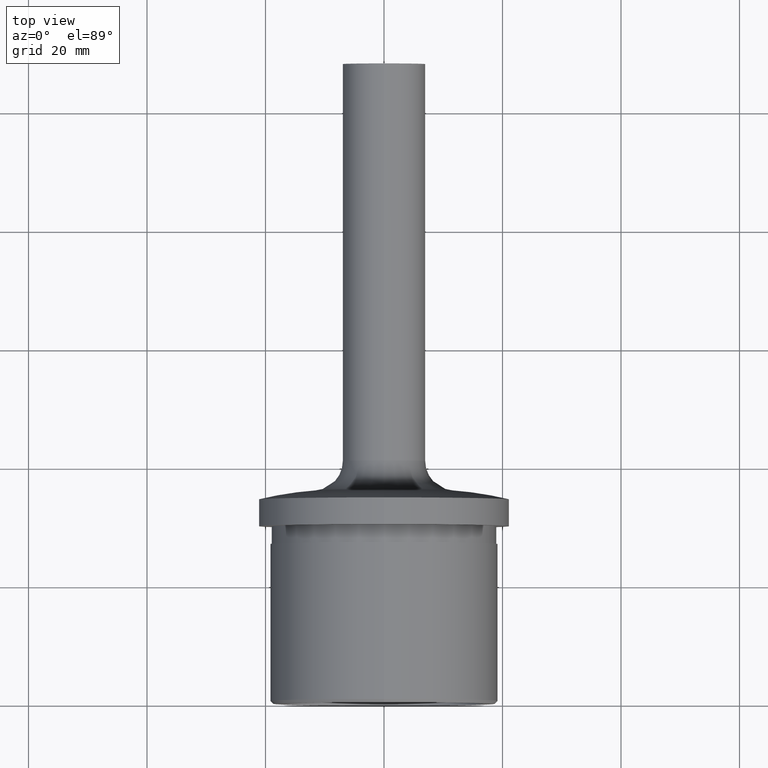
[diagram: clean part render]
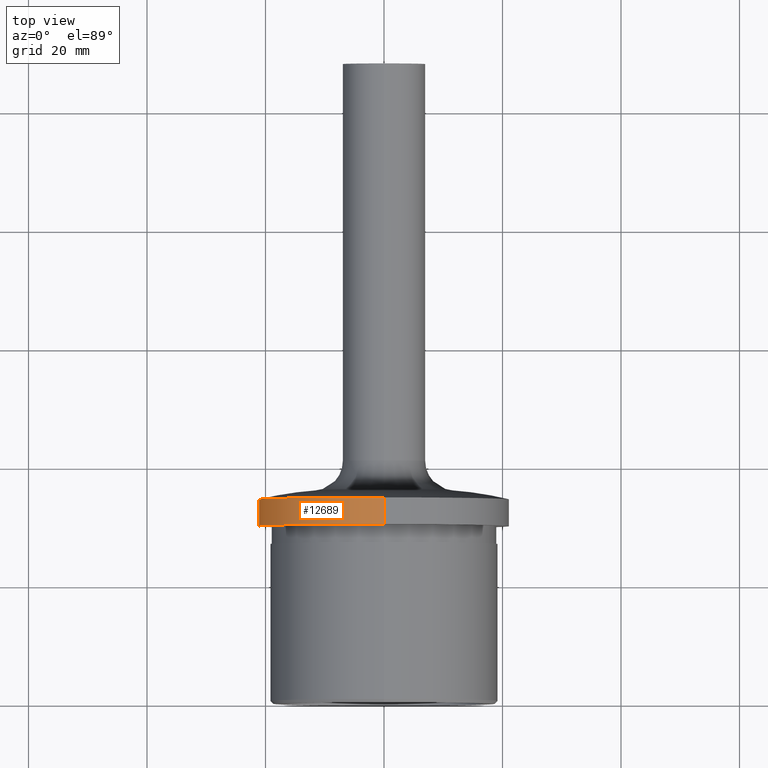
[diagram: same view with one face highlighted and labeled with its STEP entity id]
A machine part, top view. The second image highlights one B-rep face of the part: STEP entity #12689.
In plain terms, the highlighted cylindrical surface (partial cylindrical patch) has radius 21.2 mm, axis along (-0, -1, -0).
Its self-contained STEP definition (entity closure, byte-faithful):
#266 = CIRCLE ( 'NONE', #17092, 21.20000000000000300 ) ;
#453 = EDGE_LOOP ( 'NONE', ( #3968, #11205, #7090, #17318 ) ) ;
#1678 = VERTEX_POINT ( 'NONE', #1745 ) ;
#1705 = DIRECTION ( 'NONE',  ( 0.0000000000000000000, 0.0000000000000000000, -1.000000000000000000 ) ) ;
#1745 = CARTESIAN_POINT ( 'NONE',  ( 0.0000000000000000000, 34.50000000000000000, -21.20000000000000300 ) ) ;
#2373 = CARTESIAN_POINT ( 'NONE',  ( 0.0000000000000000000, 32.00000000000000000, 0.0000000000000000000 ) ) ;
#2399 = DIRECTION ( 'NONE',  ( -0.0000000000000000000, -1.000000000000000000, -0.0000000000000000000 ) ) ;
#2445 = DIRECTION ( 'NONE',  ( 0.0000000000000000000, 0.0000000000000000000, -1.000000000000000000 ) ) ;
#2559 = CARTESIAN_POINT ( 'NONE',  ( 2.596251214192389200E-015, 34.50000000000000000, 21.20000000000000300 ) ) ;
#3621 = EDGE_CURVE ( 'NONE', #1678, #13468, #5364, .T. ) ;
#3918 = DIRECTION ( 'NONE',  ( 0.0000000000000000000, 0.0000000000000000000, -1.000000000000000000 ) ) ;
#3968 = ORIENTED_EDGE ( 'NONE', *, *, #16861, .F. ) ;
#4090 = CYLINDRICAL_SURFACE ( 'NONE', #4438, 21.20000000000000300 ) ;
#4155 = VECTOR ( 'NONE', #14761, 1000.000000000000000 ) ;
#4261 = CIRCLE ( 'NONE', #11121, 21.19999999999999900 ) ;
#4438 = AXIS2_PLACEMENT_3D ( 'NONE', #2373, #13057, #2445 ) ;
#5364 = LINE ( 'NONE', #19235, #4155 ) ;
#6292 = VERTEX_POINT ( 'NONE', #15279 ) ;
#7090 = ORIENTED_EDGE ( 'NONE', *, *, #3621, .T. ) ;
#7939 = CARTESIAN_POINT ( 'NONE',  ( 0.0000000000000000000, 30.00000000000000400, 0.0000000000000000000 ) ) ;
#7957 = EDGE_CURVE ( 'NONE', #14181, #1678, #266, .T. ) ;
#8866 = VECTOR ( 'NONE', #15928, 1000.000000000000000 ) ;
#10857 = EDGE_CURVE ( 'NONE', #6292, #13468, #4261, .T. ) ;
#11005 = DIRECTION ( 'NONE',  ( -0.0000000000000000000, -1.000000000000000000, -0.0000000000000000000 ) ) ;
#11121 = AXIS2_PLACEMENT_3D ( 'NONE', #7939, #11005, #1705 ) ;
#11205 = ORIENTED_EDGE ( 'NONE', *, *, #7957, .T. ) ;
#11473 = CARTESIAN_POINT ( 'NONE',  ( 2.596251214192389200E-015, 32.00000000000000000, 21.20000000000000300 ) ) ;
#12016 = FACE_OUTER_BOUND ( 'NONE', #453, .T. ) ;
#12689 = ADVANCED_FACE ( 'NONE', ( #12016 ), #4090, .T. ) ;
#13057 = DIRECTION ( 'NONE',  ( -0.0000000000000000000, -1.000000000000000000, -0.0000000000000000000 ) ) ;
#13468 = VERTEX_POINT ( 'NONE', #16552 ) ;
#14181 = VERTEX_POINT ( 'NONE', #2559 ) ;
#14551 = CARTESIAN_POINT ( 'NONE',  ( 0.0000000000000000000, 34.50000000000000000, 0.0000000000000000000 ) ) ;
#14761 = DIRECTION ( 'NONE',  ( -0.0000000000000000000, -1.000000000000000000, -0.0000000000000000000 ) ) ;
#15279 = CARTESIAN_POINT ( 'NONE',  ( 2.596251214192388800E-015, 30.00000000000000400, 21.19999999999999900 ) ) ;
#15928 = DIRECTION ( 'NONE',  ( -0.0000000000000000000, -1.000000000000000000, -0.0000000000000000000 ) ) ;
#16489 = LINE ( 'NONE', #11473, #8866 ) ;
#16552 = CARTESIAN_POINT ( 'NONE',  ( 0.0000000000000000000, 30.00000000000000400, -21.19999999999999900 ) ) ;
#16861 = EDGE_CURVE ( 'NONE', #14181, #6292, #16489, .T. ) ;
#17092 = AXIS2_PLACEMENT_3D ( 'NONE', #14551, #2399, #3918 ) ;
#17318 = ORIENTED_EDGE ( 'NONE', *, *, #10857, .F. ) ;
#19235 = CARTESIAN_POINT ( 'NONE',  ( 0.0000000000000000000, 32.00000000000000000, -21.20000000000000300 ) ) ;